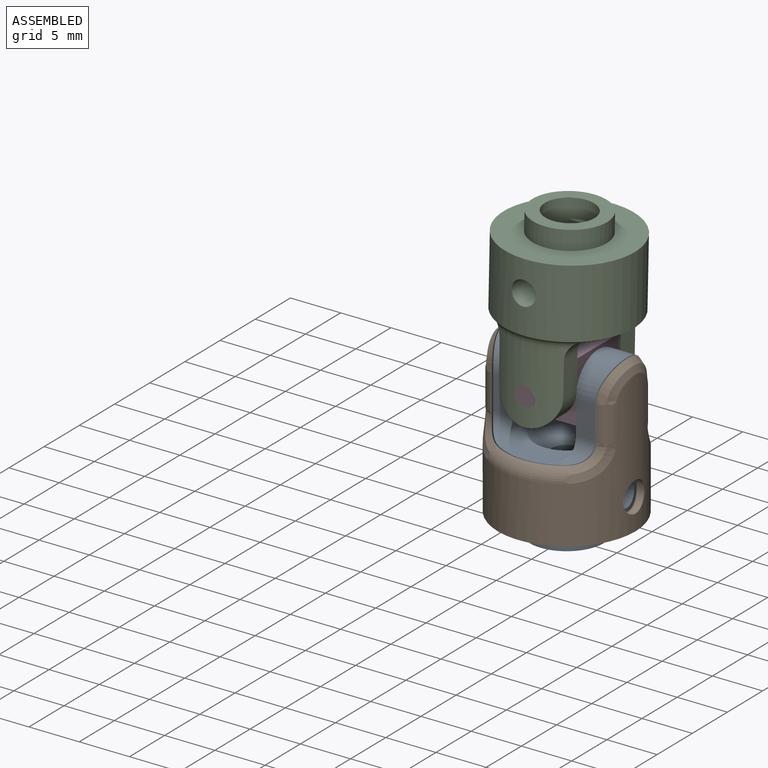
[diagram: assembled view]
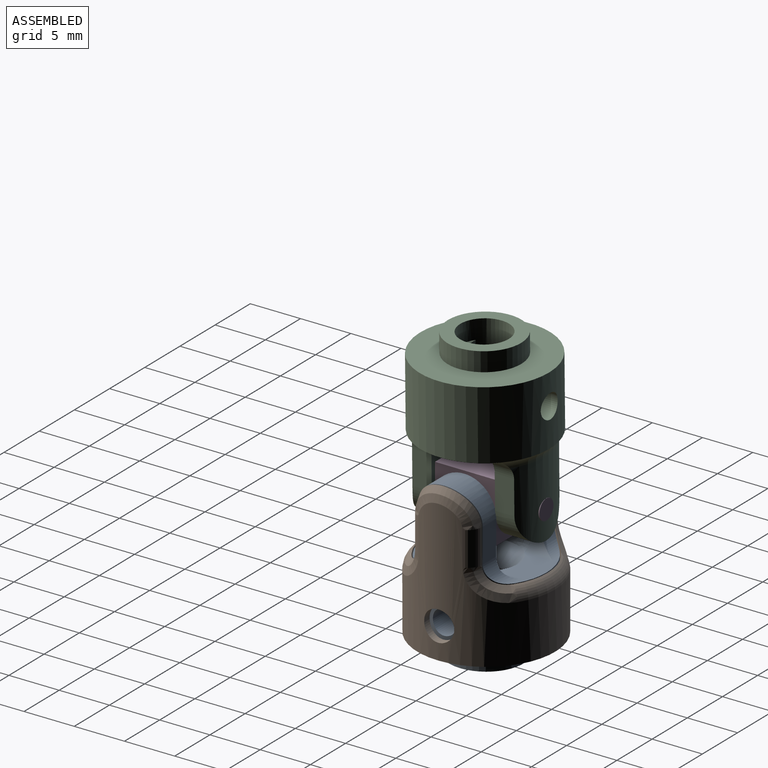
[diagram: assembled view, second angle]
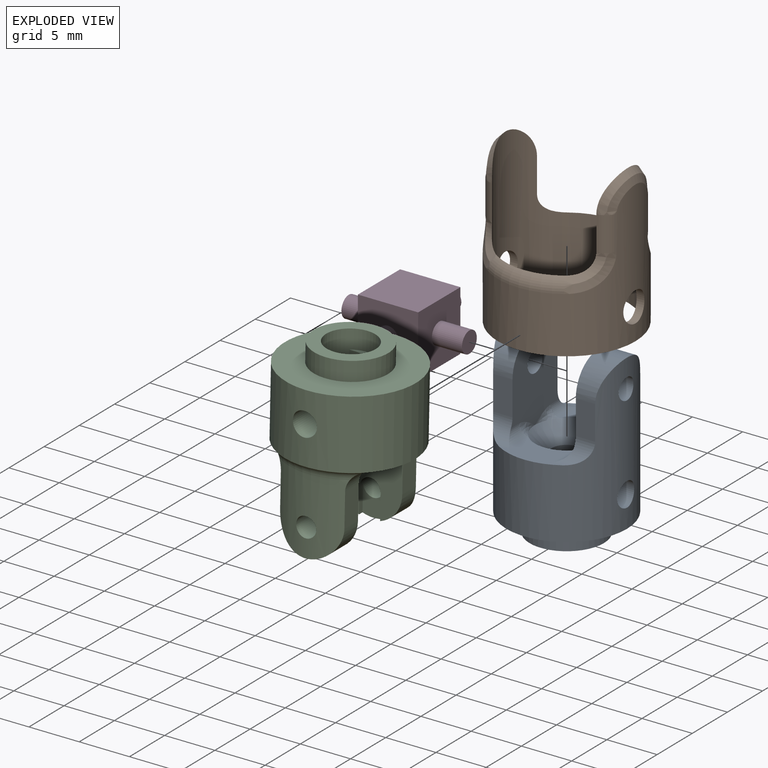
[diagram: exploded view]
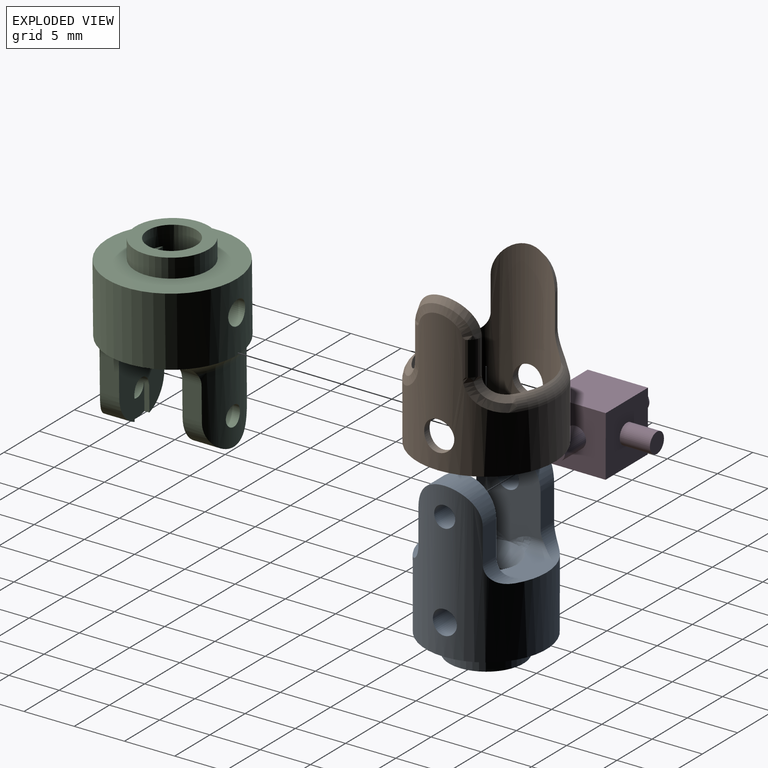
[diagram: exploded view, second angle]
ASSEMBLY  parts=4 mates=3
PART A: 38 faces, bbox 12x12x17.3 mm
  f0: plane 6.32x3.7mm, normal (0,0,1), area 13.4mm2, adj f8,f25,f26,f28,f30,f32
  f1: plane 6.32x3.7mm, normal (0,0,1), area 13.4mm2, adj f8,f25,f27,f29,f35,f37
  f2: cylinder r=2.45mm len=6.6mm, axis (0,0,-1), area 71.6mm2, adj f4,f5,f7,f9,f10,f12
  f3: cylinder r=3.7mm len=7.4mm, axis (0,0,-1), area 44.2mm2, adj f4,f6
  f4: plane 7.4x7.4mm, normal (0,0,-1), area 24.2mm2, adj f2,f3
  f5: plane 2.97x0.5mm, normal (0,0,-1), area 1mm2, adj f2,f9
  f6: plane 12x12mm, normal (0,0,-1), area 70.1mm2, adj f3,f8
  f7: plane 4.7x2.97mm, normal (-1,0,0), area 9.4mm2, adj f2,f10,f12,f22
  f8: cylinder r=6mm len=15.4mm, axis (0,0,-1), area 353mm2, adj f0,f1,f6,f13,f14,f16,f18,f19
  f9: plane 4.7x2.97mm, normal (1,0,0), area 9.4mm2, adj f2,f5,f12,f21
  f10: plane 2.97x0.5mm, normal (0,0,-1), area 1mm2, adj f2,f7
  f11: cylinder r=1.5mm len=3mm, axis (0,0,-1), area 5.2mm2, adj f12,f25
  f12: plane 4.9x3.9mm, normal (0,0,-1), area 9.8mm2, adj f2,f7,f9,f11
  f13: plane 3.4x1.93mm, normal (0,1,0), area 6.5mm2, adj f8,f15,f24,f29
  f14: plane 3.4x1.93mm, normal (0,-1,0), area 6.5mm2, adj f8,f15,f24,f28
  f15: plane 8.54x6.89mm, normal (1,0,0), area 42mm2, adj f13,f14,f20,f24,f28,f29,f30,f31
  f16: plane 3.4x1.93mm, normal (0,1,0), area 6.5mm2, adj f8,f17,f23,f27
  f17: plane 8.54x6.89mm, normal (-1,0,0), area 42mm2, adj f16,f18,f19,f23,f26,f27,f32,f33
  f18: plane 3.4x1.93mm, normal (0,-1,0), area 6.5mm2, adj f8,f17,f23,f26
  f19: cylinder r=1.05mm len=2.85mm, axis (1,0,0), area 18.5mm2, adj f8,f17
  f20: cylinder r=1.05mm len=2.85mm, axis (1,0,0), area 18.5mm2, adj f8,f15
  f21: cylinder r=1.2mm len=4.05mm, axis (1,0,0), area 30.1mm2, adj f8,f9
  f22: cylinder r=1.2mm len=4.05mm, axis (1,0,0), area 30.1mm2, adj f7,f8
  f23: cylinder r=3.2mm len=6.4mm, axis (1,0,0), area 24.1mm2, adj f8,f16,f17,f18
  f24: cylinder r=3.2mm len=6.4mm, axis (1,0,0), area 24.1mm2, adj f8,f13,f14,f15
  f25: cone r=1.5mm half-angle=45deg, axis (0,0,1), area 34.1mm2, adj f0,f1,f11,f31,f33,f34,f36
  f26: cylinder r=1.9mm len=2.93mm, axis (1,0,0), area 4.8mm2, adj f0,f8,f17,f18,f32
  f27: cylinder r=1.9mm len=2.93mm, axis (-1,0,0), area 4.8mm2, adj f1,f8,f16,f17,f35
  f28: cylinder r=1.9mm len=2.93mm, axis (1,0,0), area 4.8mm2, adj f0,f8,f14,f15,f30
  f29: cylinder r=1.9mm len=2.93mm, axis (-1,0,0), area 4.8mm2, adj f1,f8,f13,f15,f37
  f30: cylinder r=1mm len=2.8mm, axis (0,1,0), area 2.9mm2, adj f0,f15,f28,f31
  f31: bspline ~2.64x1.18mm, area 1.7mm2, adj f15,f25,f30
  f32: cylinder r=1mm len=2.8mm, axis (0,-1,0), area 2.9mm2, adj f0,f17,f26,f33
  f33: bspline ~2.64x1.18mm, area 1.7mm2, adj f17,f25,f32
  f34: bspline ~2.64x1.18mm, area 1.7mm2, adj f17,f25,f35
  f35: cylinder r=1mm len=2.8mm, axis (0,-1,0), area 2.9mm2, adj f1,f17,f27,f34
  f36: bspline ~2.64x1.18mm, area 1.7mm2, adj f15,f25,f37
  f37: cylinder r=1mm len=2.8mm, axis (0,1,0), area 2.9mm2, adj f1,f15,f29,f36
PART B: 17 faces, bbox 13.7x14.8x15.4 mm
  f0: cylinder r=6.1mm len=15.4mm, axis (0,0,-1), area 358.9mm2, adj f2,f3,f4,f5,f6,f7,f8,f9
  f1: cylinder r=6.85mm len=14.1mm, axis (0,0,-1), area 310mm2, adj f2,f3,f4,f5,f6,f7,f8,f9
  f2: plane 13.7x13.7mm, normal (0,0,-1), area 30.5mm2, adj f0,f1
  f3: cylinder r=1.5mm len=3mm, axis (-1,0,0), area 7.1mm2, adj f0,f1
  f4: cylinder r=1.5mm len=3mm, axis (-1,0,0), area 7.1mm2, adj f0,f1
  f5: bspline ~6.4x3.2mm, area 14.3mm2, adj f0,f1,f6,f7
  f6: cylinder r=1.5mm len=3.4mm, axis (0,0,1), area 5.9mm2, adj f0,f1,f5,f8
  f7: cylinder r=1.5mm len=3.4mm, axis (0,0,1), area 5.9mm2, adj f0,f1,f5,f9
  f8: bspline ~3.54x3.2mm, area 8mm2, adj f0,f1,f6,f10
  f9: bspline ~3.54x3.2mm, area 8mm2, adj f0,f1,f7,f11
  f10: torus R=5.35mm, axis (0,0,1), area 12mm2, adj f0,f1,f8,f12
  f11: torus R=5.35mm, axis (0,0,1), area 12mm2, adj f0,f1,f9,f13
  f12: bspline ~3.54x3.2mm, area 8mm2, adj f0,f1,f10,f14
  f13: bspline ~3.54x3.2mm, area 8mm2, adj f0,f1,f11,f15
  f14: cylinder r=1.5mm len=3.4mm, axis (0,0,1), area 5.9mm2, adj f0,f1,f12,f16
  f15: cylinder r=1.5mm len=3.4mm, axis (0,0,1), area 5.9mm2, adj f0,f1,f13,f16
  f16: bspline ~6.4x3.81mm, area 14.3mm2, adj f0,f1,f14,f15
PART C: 52 faces, bbox 15.2x13x17.3 mm
  f0: plane 8.06x4.2mm, normal (0,0,1), area 17.2mm2, adj f12,f37,f38,f41,f47,f51
  f1: plane 8.32x6.85mm, normal (1,0,0), area 38.1mm2, adj f4,f17,f19,f25,f26,f28,f29,f36
  f2: plane 8.32x6.85mm, normal (-1,0,0), area 38.1mm2, adj f3,f21,f22,f30,f31,f33,f34,f35
  f3: cylinder r=1mm len=2.85mm, axis (1,0,0), area 16.1mm2, adj f2,f20,f32,f33,f34
  f4: cylinder r=1mm len=2.85mm, axis (1,0,0), area 16.1mm2, adj f1,f18,f25,f26,f27
  f5: plane 8.06x4.2mm, normal (0,0,1), area 17.2mm2, adj f12,f37,f39,f40,f42,f44
  f6: cylinder r=2.45mm len=6.6mm, axis (0,0,-1), area 71.6mm2, adj f8,f9,f11,f13,f14,f16
  f7: cylinder r=3.7mm len=7.4mm, axis (0,0,-1), area 44.2mm2, adj f8,f10
  f8: plane 7.4x7.4mm, normal (0,0,-1), area 24.2mm2, adj f6,f7
  f9: plane 2.97x0.5mm, normal (0,0,-1), area 1mm2, adj f6,f13
  f10: plane 13x13mm, normal (0,0,-1), area 89.7mm2, adj f7,f12
  f11: plane 4.7x2.97mm, normal (-1,0,0), area 9.4mm2, adj f6,f14,f16,f24
  f12: cylinder r=6.5mm len=13mm, axis (0,0,-1), area 272.7mm2, adj f0,f5,f10,f23,f24,f48,f49
  f13: plane 4.7x2.97mm, normal (1,0,0), area 9.4mm2, adj f6,f9,f16,f23
  f14: plane 2.97x0.5mm, normal (0,0,-1), area 1mm2, adj f6,f11
  f15: cylinder r=1.5mm len=3mm, axis (0,0,-1), area 5.2mm2, adj f16,f37
  f16: plane 4.9x3.9mm, normal (0,0,-1), area 9.8mm2, adj f6,f11,f13,f15
  f17: plane 3.4x1.93mm, normal (0,1,0), area 6.5mm2, adj f1,f18,f36,f41
  f18: cylinder r=6mm len=7.63mm, axis (0,0,-1), area 43.7mm2, adj f4,f17,f19,f36,f40,f41,f49
  f19: plane 3.4x1.93mm, normal (0,-1,0), area 6.5mm2, adj f1,f18,f36,f40
  f20: cylinder r=6mm len=7.63mm, axis (0,0,-1), area 43.7mm2, adj f3,f21,f22,f35,f38,f39,f48
  f21: plane 3.4x1.93mm, normal (0,1,0), area 6.5mm2, adj f2,f20,f35,f38
  f22: plane 3.4x1.93mm, normal (0,-1,0), area 6.5mm2, adj f2,f20,f35,f39
  f23: cylinder r=1.2mm len=4.55mm, axis (1,0,0), area 33.9mm2, adj f12,f13
  f24: cylinder r=1.2mm len=4.55mm, axis (1,0,0), area 33.9mm2, adj f11,f12
  f25: plane 0.5x0.05mm, normal (0,0,1), area 0mm2, adj f1,f4,f27,f28
  f26: plane 0.5x0.05mm, normal (0,0,1), area 0mm2, adj f1,f4,f27,f29
  f27: plane 2.8x2.1mm, normal (1,0,0), area 4.2mm2, adj f4,f25,f26,f28,f29,f36
  f28: plane 2.62x0.5mm, normal (0,1,0), area 1.3mm2, adj f1,f25,f27,f36
  f29: plane 2.62x0.5mm, normal (0,-1,0), area 1.3mm2, adj f1,f26,f27,f36
  f30: plane 2.62x0.5mm, normal (0,-1,0), area 1.3mm2, adj f2,f32,f34,f35
  f31: plane 2.62x0.5mm, normal (0,1,0), area 1.3mm2, adj f2,f32,f33,f35
  f32: plane 2.8x2.1mm, normal (-1,0,0), area 4.2mm2, adj f3,f30,f31,f33,f34,f35
  f33: plane 0.5x0.05mm, normal (0,0,1), area 0mm2, adj f2,f3,f31,f32
  f34: plane 0.5x0.05mm, normal (0,0,1), area 0mm2, adj f2,f3,f30,f32
  f35: cylinder r=3.2mm len=6.4mm, axis (-1,0,0), area 23mm2, adj f2,f20,f21,f22,f30,f31,f32
  f36: cylinder r=3.2mm len=6.4mm, axis (1,0,0), area 23mm2, adj f1,f17,f18,f19,f27,f28,f29
  f37: cone r=1.5mm half-angle=45deg, axis (0,0,1), area 34.1mm2, adj f0,f5,f15,f43,f45,f46,f50
  f38: cylinder r=1.9mm len=2.93mm, axis (-1,0,0), area 5.5mm2, adj f0,f2,f20,f21,f47,f48
  f39: cylinder r=1.9mm len=2.93mm, axis (1,0,0), area 5.5mm2, adj f2,f5,f20,f22,f42,f48
  f40: cylinder r=1.9mm len=2.93mm, axis (1,0,0), area 5.5mm2, adj f1,f5,f18,f19,f44,f49
  f41: cylinder r=1.9mm len=2.93mm, axis (-1,0,0), area 5.5mm2, adj f0,f1,f17,f18,f49,f51
  f42: cylinder r=1mm len=2.8mm, axis (0,-1,0), area 2.9mm2, adj f2,f5,f39,f43
  f43: bspline ~2.64x1.18mm, area 1.7mm2, adj f2,f37,f42
  f44: cylinder r=1mm len=2.8mm, axis (0,1,0), area 2.9mm2, adj f1,f5,f40,f45
  f45: bspline ~2.64x1.18mm, area 1.7mm2, adj f1,f37,f44
  f46: bspline ~2.64x1.18mm, area 1.7mm2, adj f2,f37,f47
  f47: cylinder r=1mm len=2.8mm, axis (0,-1,0), area 2.9mm2, adj f0,f2,f38,f46
  f48: torus R=7mm, axis (0,0,-1), area 9.3mm2, adj f12,f20,f38,f39
  f49: torus R=7mm, axis (0,0,-1), area 9.3mm2, adj f12,f18,f40,f41
  f50: bspline ~2.64x1.18mm, area 1.7mm2, adj f1,f37,f51
  f51: cylinder r=1mm len=2.8mm, axis (0,1,0), area 2.9mm2, adj f0,f1,f41,f50
PART D: 14 faces, bbox 12x6x12 mm
  f0: plane 6x6mm, normal (-1,0,0), area 32.9mm2, adj f1,f3,f4,f5,f12
  f1: plane 6x6mm, normal (0,-1,0), area 36mm2, adj f0,f2,f4,f5
  f2: plane 6x6mm, normal (1,0,0), area 32.9mm2, adj f1,f3,f4,f5,f11
  f3: plane 6x6mm, normal (0,1,0), area 36mm2, adj f0,f2,f4,f5
  f4: plane 6x6mm, normal (0,0,1), area 32.5mm2, adj f0,f1,f2,f3,f8
  f5: plane 6x6mm, normal (0,0,-1), area 32.5mm2, adj f0,f1,f2,f3,f7
  f6: plane 2.1x2.1mm, normal (0,0,-1), area 3.5mm2, adj f7
  f7: cylinder r=1.05mm len=3mm, axis (0,0,-1), area 19.8mm2, adj f5,f6
  f8: cylinder r=1.05mm len=3mm, axis (0,0,-1), area 19.8mm2, adj f4,f9
  f9: plane 2.1x2.1mm, normal (0,0,1), area 3.5mm2, adj f8
  f10: plane 2x2mm, normal (1,0,0), area 3.1mm2, adj f11
  f11: cylinder r=1mm len=3mm, axis (-1,0,0), area 18.8mm2, adj f2,f10
  f12: cylinder r=1mm len=3mm, axis (-1,0,0), area 18.8mm2, adj f0,f13
  f13: plane 2x2mm, normal (-1,0,0), area 3.1mm2, adj f12
PLACE A at identity fixed
PLACE B rot(axis=(0,0,1),0deg) t=(0,0,1.9)mm
PLACE C rot(axis=(0.71,-0.71,-0.01),179.1deg) t=(0.29,0.03,29)mm
PLACE D rot(axis=(0.58,0.58,0.58),119.9deg) t=(-2.98,-3.01,11.51)mm
MATE revolute A.f19 <-> D.f7  axis (1,0,0) through (6.02,0,14.5)mm
MATE revolute B.f0 <-> A.f8  axis (0,0,-1) through (0,0,1.9)mm
MATE revolute C.f3 <-> D.f11  axis (0,-1,0) through (0.02,6,14.48)mm
